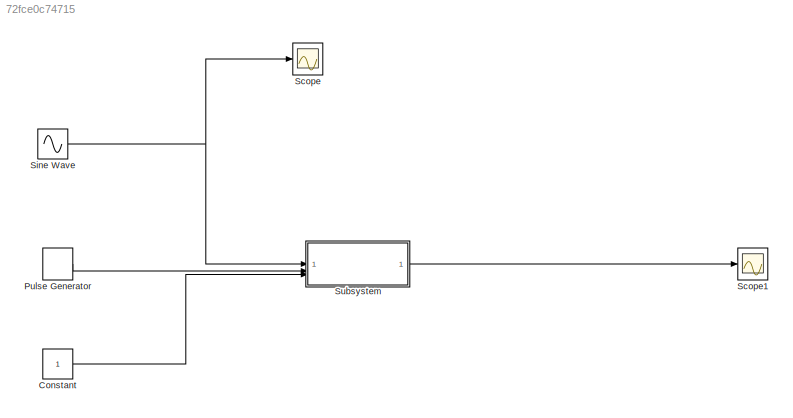
MODEL slx_72fce0c74715
KIND model
CONFIG AbsTol = auto
CONFIG EnableMultiTasking = off
CONFIG FixedStep = auto
CONFIG MaxStep = auto
CONFIG MinStep = auto
CONFIG RelTol = 1e-3
CONFIG SampleTimeConstraint = Unconstrained
CONFIG SolverName = VariableStepAuto
CONFIG StartTime = 0.0
CONFIG StopTime = 10.0
BLOCK [Constant] Constant
BLOCK [DiscretePulseGenerator] Pulse Generator
  Period = 10
  PulseType = Time based
  PulseWidth = 5
BLOCK [Scope] Scope
  Floating = off
  NumInputPorts = 1
  ScopeSpecificationString = Simulink.scopes.TimeScopeBlockCfg('CurrentConfiguration', extmgr.ConfigurationSet(extmgr.Configuration('Core','General UI',true),extmgr.Configuration('Core','Source UI',true),extmgr.Configuration('Sources','WiredSimulink',true),extmgr.Configuration('Visuals','Time Domain',true,'SerializedDisplays',{struct('MinYLimReal','-1.24978','MaxYLimReal','1.2488','YLabelReal','','MinYLimMag','0.00000','MaxYL...<+1356ch>
BLOCK [Scope] Scope1
  Floating = off
  NumInputPorts = 1
  ScopeSpecificationString = Simulink.scopes.TimeScopeBlockCfg('CurrentConfiguration', extmgr.ConfigurationSet(extmgr.Configuration('Core','General UI',true),extmgr.Configuration('Core','Source UI',true),extmgr.Configuration('Sources','WiredSimulink',true,'DataLoggingVariableName','ScopeData1'),extmgr.Configuration('Visuals','Time Domain',true,'SerializedDisplays',{struct('MinYLimReal','-0.05829','MaxYLimReal','0.53865','YLab...<+1395ch>
BLOCK [Sin] Sine Wave
  SampleTime = 0
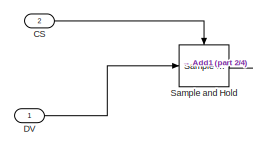
[diagram: Subsystem - part 1/4, top left region]
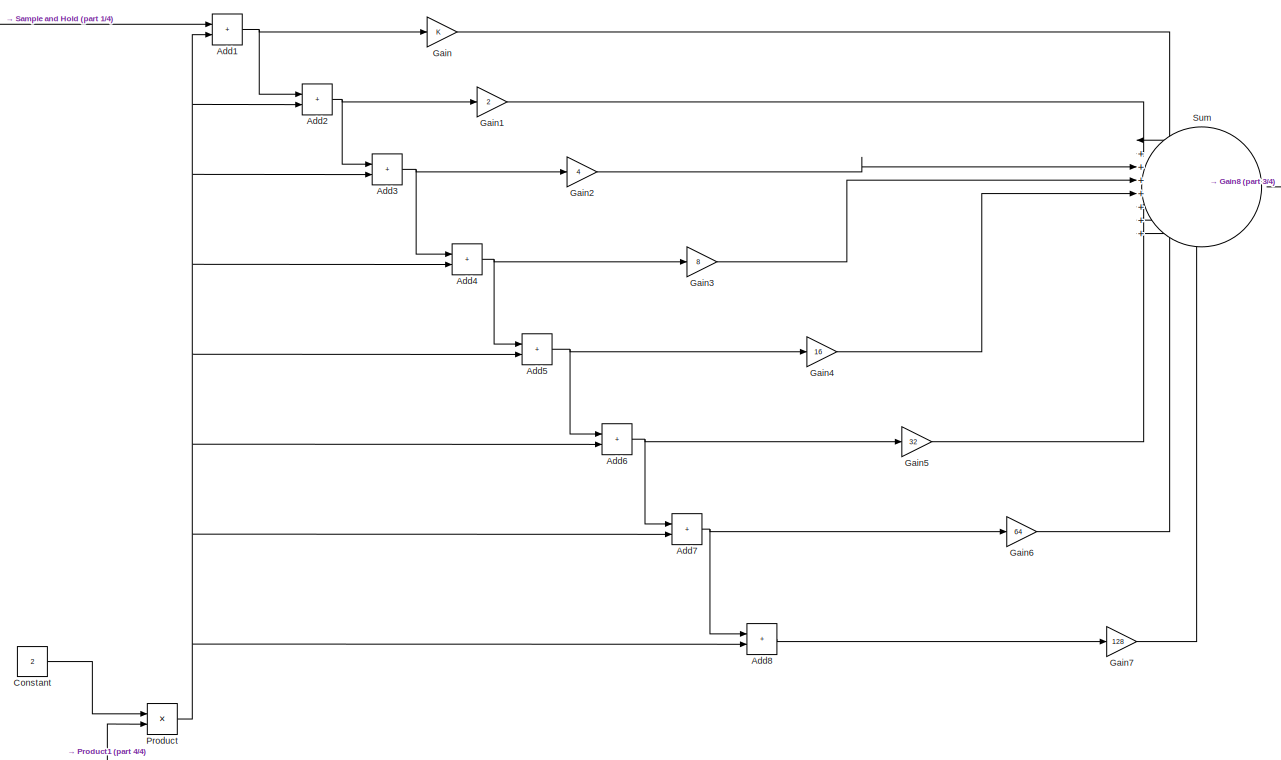
[diagram: Subsystem - part 2/4, center side, full height]
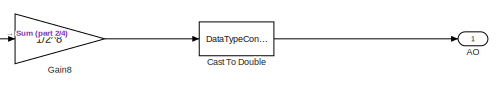
[diagram: Subsystem - part 3/4, top right region]
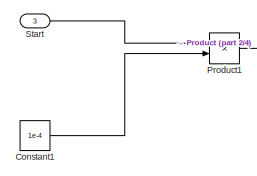
[diagram: Subsystem - part 4/4, bottom left region]
BLOCK [SubSystem] Subsystem
BLOCK [Outport] Subsystem/AO
BLOCK [Sum] Subsystem/Add1
  IconShape = rectangular
BLOCK [Sum] Subsystem/Add2
  IconShape = rectangular
BLOCK [Sum] Subsystem/Add3
  IconShape = rectangular
BLOCK [Sum] Subsystem/Add4
  IconShape = rectangular
BLOCK [Sum] Subsystem/Add5
  IconShape = rectangular
BLOCK [Sum] Subsystem/Add6
  IconShape = rectangular
BLOCK [Sum] Subsystem/Add7
  IconShape = rectangular
BLOCK [Sum] Subsystem/Add8
  IconShape = rectangular
BLOCK [Inport] Subsystem/CS
  Port = 2
BLOCK [DataTypeConversion] Subsystem/Cast To Double
  OutDataTypeStr = double
  RndMeth = Floor
  SaturateOnIntegerOverflow = off
BLOCK [Constant] Subsystem/Constant
  Value = 2
BLOCK [Constant] Subsystem/Constant1
  Value = 1e-4
BLOCK [Inport] Subsystem/DV
BLOCK [Gain] Subsystem/Gain
BLOCK [Gain] Subsystem/Gain1
  Gain = 2
BLOCK [Gain] Subsystem/Gain2
  Gain = 4
BLOCK [Gain] Subsystem/Gain3
  Gain = 8
BLOCK [Gain] Subsystem/Gain4
  Gain = 16
BLOCK [Gain] Subsystem/Gain5
  Gain = 32
BLOCK [Gain] Subsystem/Gain6
  Gain = 64
BLOCK [Gain] Subsystem/Gain7
  Gain = 128
BLOCK [Gain] Subsystem/Gain8
  Gain = 1/2^8
BLOCK [Product] Subsystem/Product
BLOCK [Product] Subsystem/Product1
BLOCK [Reference] Subsystem/Sample and Hold  REF=dspsigops/Sample
and Hold
  LibrarySourceBlock = dsphdlsupportsigops/Sample\nand Hold
  SourceBlock = dspsigops/Sample\nand Hold
  SourceType = Sample and Hold
BLOCK [Inport] Subsystem/Start
  Port = 3
BLOCK [Sum] Subsystem/Sum
  Inputs = |++++++++
LINE Constant:1 -> Subsystem:3
LINE Pulse Generator:1 -> Subsystem:2
NET Sine Wave:1 -> Scope:1, Subsystem:1
NET Subsystem/Add1:1 -> Subsystem/Add2:1, Subsystem/Gain:1
NET Subsystem/Add2:1 -> Subsystem/Add3:1, Subsystem/Gain1:1
NET Subsystem/Add3:1 -> Subsystem/Add4:1, Subsystem/Gain2:1
NET Subsystem/Add4:1 -> Subsystem/Add5:1, Subsystem/Gain3:1
NET Subsystem/Add5:1 -> Subsystem/Add6:1, Subsystem/Gain4:1
NET Subsystem/Add6:1 -> Subsystem/Add7:1, Subsystem/Gain5:1
NET Subsystem/Add7:1 -> Subsystem/Add8:1, Subsystem/Gain6:1
LINE Subsystem/Add8:1 -> Subsystem/Gain7:1
LINE Subsystem/CS:1 -> Subsystem/Sample and Hold:trigger
LINE Subsystem/Cast To Double:1 -> Subsystem/AO:1
LINE Subsystem/Constant1:1 -> Subsystem/Product1:2
LINE Subsystem/Constant:1 -> Subsystem/Product:1
LINE Subsystem/DV:1 -> Subsystem/Sample and Hold:1
LINE Subsystem/Gain1:1 -> Subsystem/Sum:2
LINE Subsystem/Gain2:1 -> Subsystem/Sum:3
LINE Subsystem/Gain3:1 -> Subsystem/Sum:4
LINE Subsystem/Gain4:1 -> Subsystem/Sum:5
LINE Subsystem/Gain5:1 -> Subsystem/Sum:6
LINE Subsystem/Gain6:1 -> Subsystem/Sum:7
LINE Subsystem/Gain7:1 -> Subsystem/Sum:8
LINE Subsystem/Gain8:1 -> Subsystem/Cast To Double:1
LINE Subsystem/Gain:1 -> Subsystem/Sum:1
LINE Subsystem/Product1:1 -> Subsystem/Product:2
NET Subsystem/Product:1 -> Subsystem/Add1:2, Subsystem/Add2:2, Subsystem/Add3:2, Subsystem/Add4:2, Subsystem/Add5:2, Subsystem/Add6:2, Subsystem/Add7:2, Subsystem/Add8:2
LINE Subsystem/Sample and Hold:1 -> Subsystem/Add1:1
LINE Subsystem/Start:1 -> Subsystem/Product1:1
LINE Subsystem/Sum:1 -> Subsystem/Gain8:1
LINE Subsystem:1 -> Scope1:1
note: NET lines group one-source signal fan-out (src -> all destinations, sorted); 1:1 wires keep LINE
